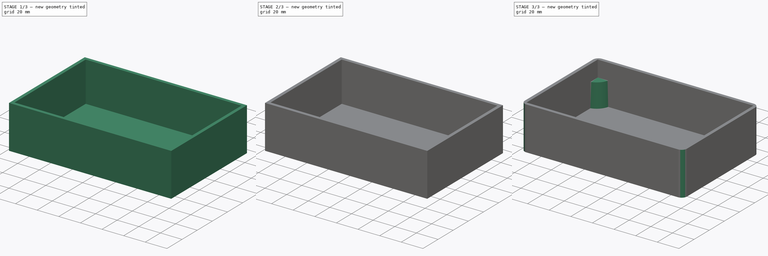
[diagram: build sequence overview — one tinted view per stage of 3, left to right]
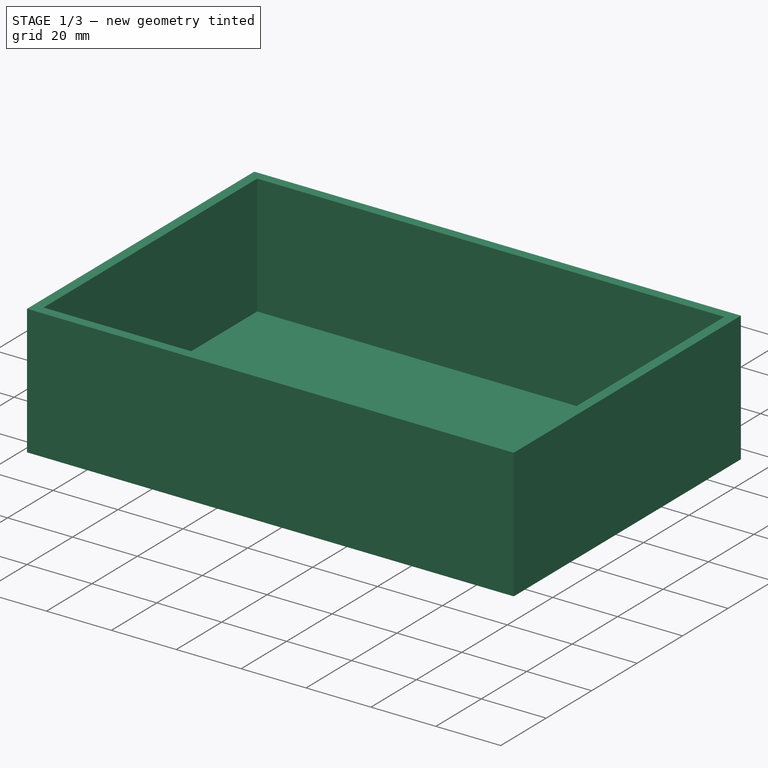
[diagram: stage 1 of 3 — iso view after this stage's code; geometry added in this stage tinted green]
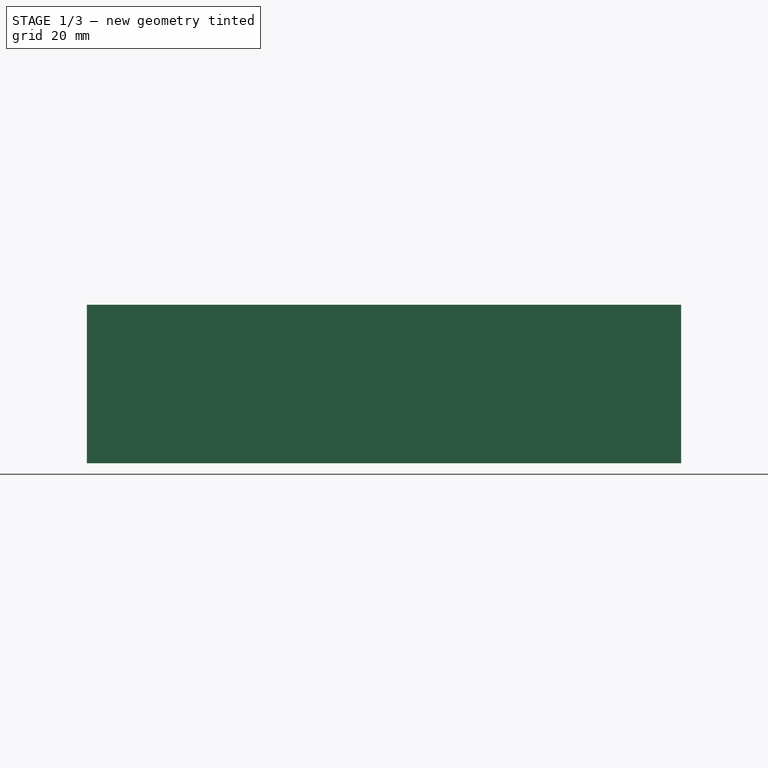
[diagram: stage 1 of 3 — front view after this stage's code; geometry added in this stage tinted green]
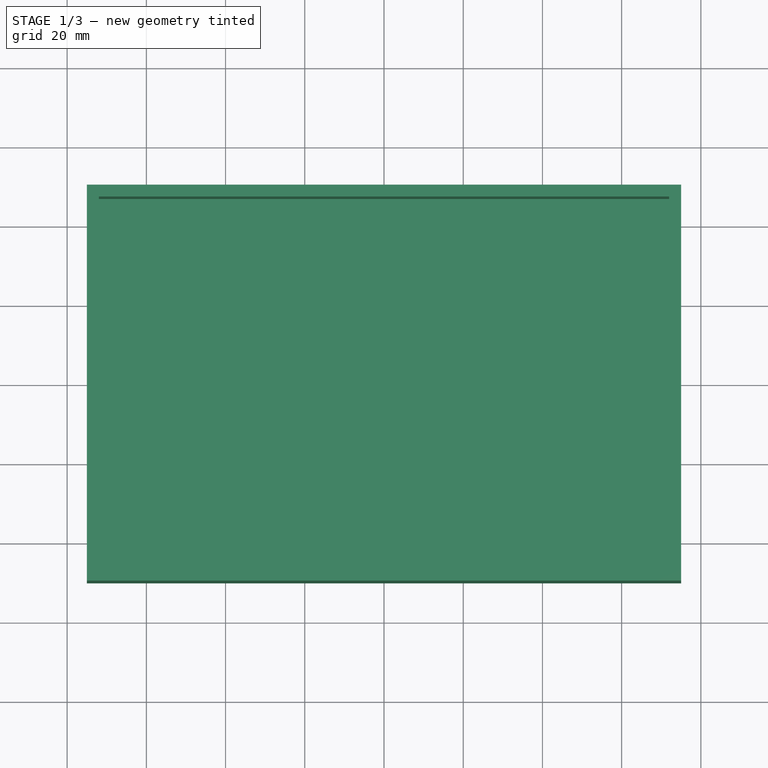
[diagram: stage 1 of 3 — top view after this stage's code; geometry added in this stage tinted green]
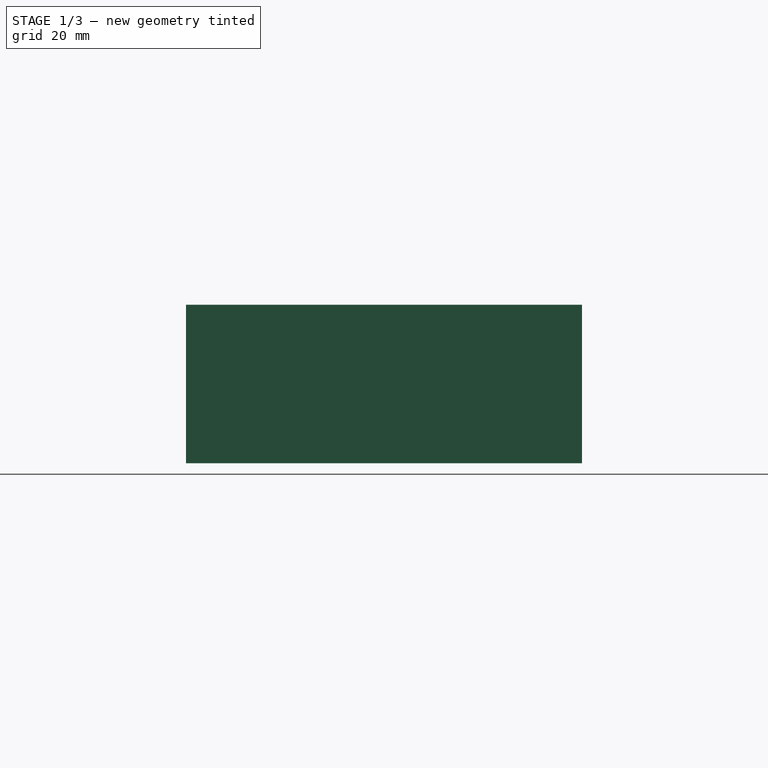
[diagram: stage 1 of 3 — right view after this stage's code; geometry added in this stage tinted green]
FCSTD DOCUMENT  (FreeCAD 1.0R39319 (Git))
Label: KICAD BOX
License: All rights reserved
LicenseURL: https://en.wikipedia.org/wiki/All_rights_reserved
objects: Sketcher::SketchObject×3, PartDesign::Pad×2, PartDesign::Thickness×1, PartDesign::Mirrored×1, PartDesign::Fillet×1, PartDesign::Body×1
note: 21 computed .brp shape members not serialized (recipe doc carries the construction recipe); baked Part::Feature solids carry a one-line shape summary decoded from their .brp

FEATURE [Sketcher::SketchObject] Sketch
  ArcFitTolerance = 1e-06
  AttachmentSupport = -> [XY_Plane]
  FullyConstrained = true
  MakeInternals = false
  MapMode = 5
  sketch-geometry (4):
    g0: LineSegment StartX=-75 StartY=50 StartZ=0 EndX=-75 EndY=-50 EndZ=0
    g1: LineSegment StartX=-75 StartY=-50 StartZ=0 EndX=75 EndY=-50 EndZ=0
    g2: LineSegment StartX=75 StartY=-50 StartZ=0 EndX=75 EndY=50 EndZ=0
    g3: LineSegment StartX=75 StartY=50 StartZ=0 EndX=-75 EndY=50 EndZ=0
  constraints (11):
    c: Coincident(g0,g1)
    c: Coincident(g1,g2)
    c: Coincident(g2,g3)
    c: Coincident(g3,g0)
    c: Vertical(g0)
    c: Vertical(g2)
    c: Horizontal(g1)
    c: Horizontal(g3)
    c: Distance(g0,g2) = 150
    c: Distance(g1,g3) = 100
    c: Symmetric(g0,g1,g-1)
FEATURE [PartDesign::Pad] Pad
  Direction = (0,0,1)
  Length = 40
  Length2 = 10
  Profile = -> Sketch
  ReferenceAxis = -> Sketch [N_Axis]
  Refine = true
  Reversed = true
  Suppressed = false
  Type = 0
FEATURE [PartDesign::Thickness] Thickness
  Base = -> Pad [Face5]
  BaseFeature = -> Pad
  Intersection = false
  Join = 1
  Mode = 0
  Refine = true
  Reversed = true
  SupportTransform = false
  Suppressed = false
  Value = 3
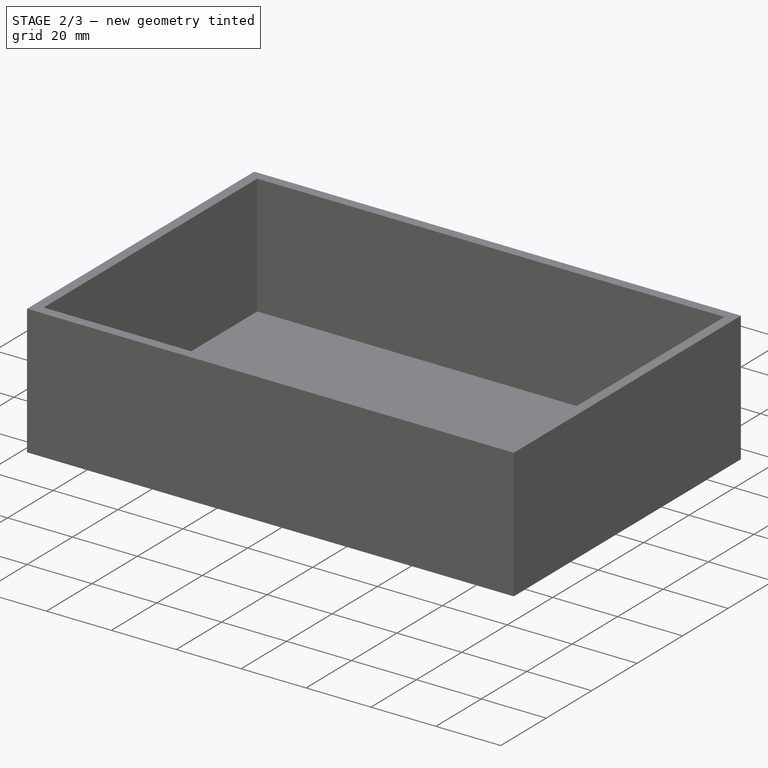
[diagram: stage 2 of 3 — iso view after this stage's code; geometry added in this stage tinted green]
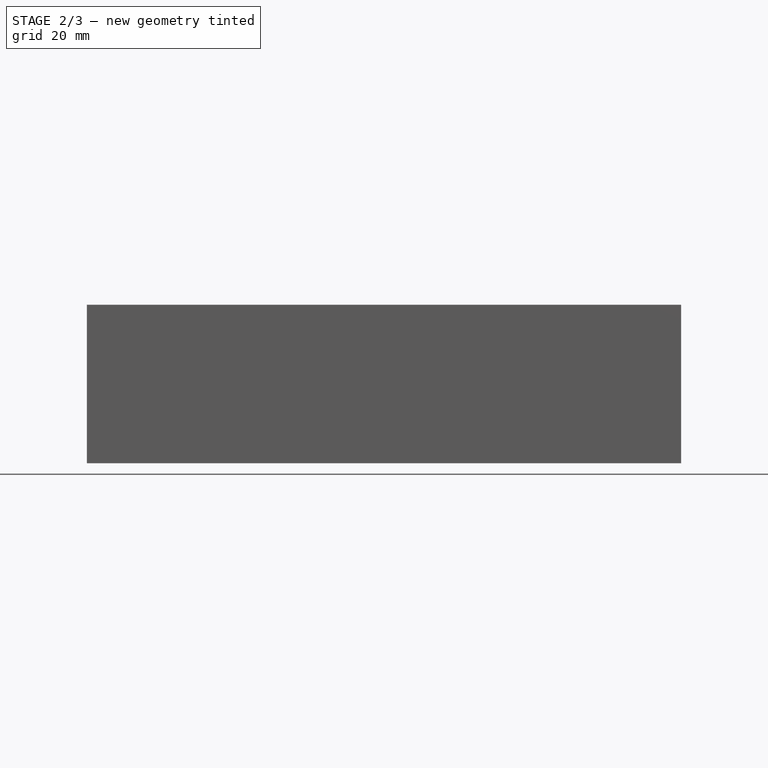
[diagram: stage 2 of 3 — front view after this stage's code; geometry added in this stage tinted green]
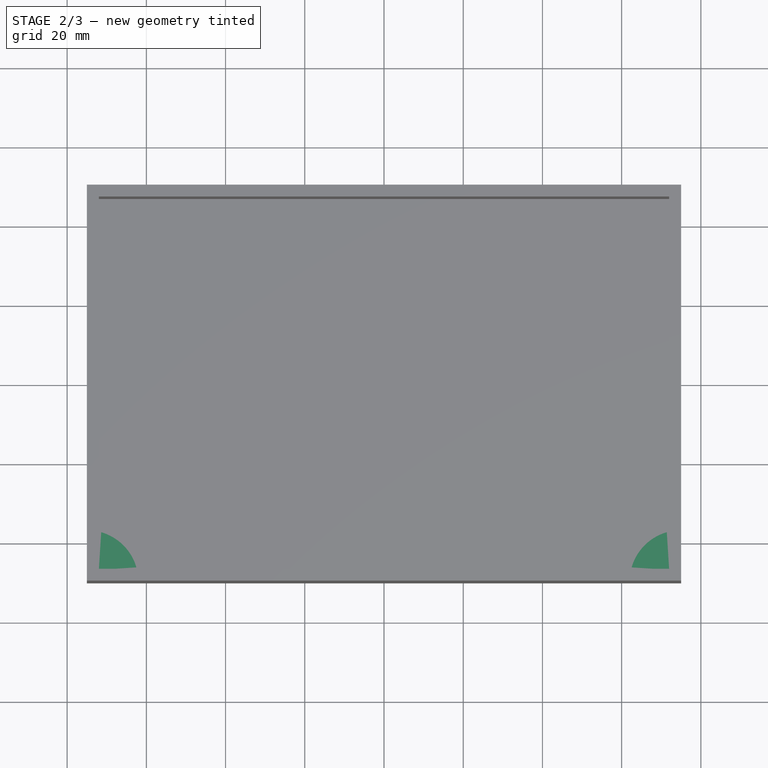
[diagram: stage 2 of 3 — top view after this stage's code; geometry added in this stage tinted green]
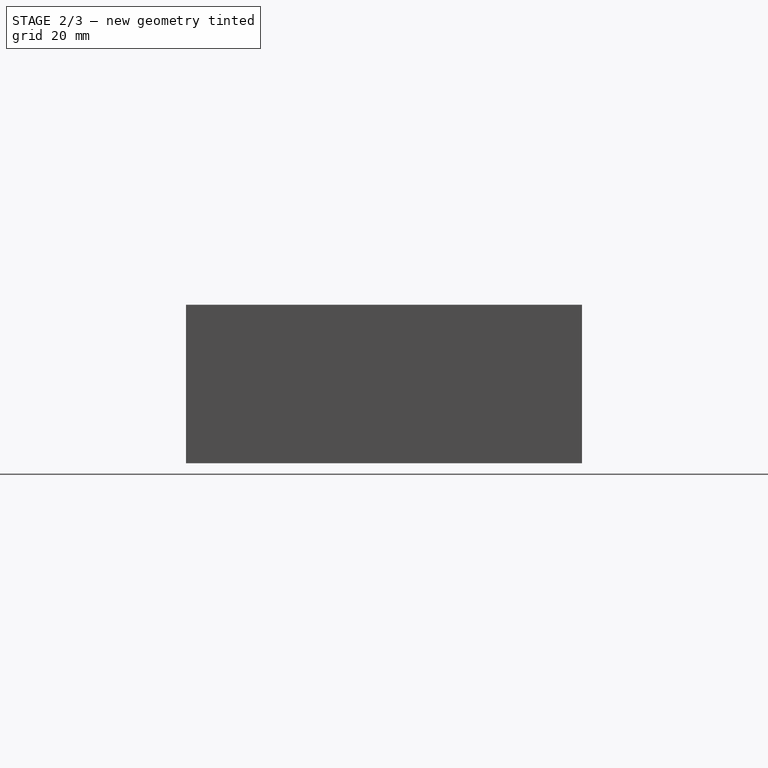
[diagram: stage 2 of 3 — right view after this stage's code; geometry added in this stage tinted green]
FEATURE [Sketcher::SketchObject] Sketch001
  ArcFitTolerance = 1e-06
  AttachmentSupport = -> [Thickness]
  ExternalGeometry = -> [Thickness]
  FullyConstrained = true
  MakeInternals = false
  MapMode = 5
  Placement = pos=(0,0,-40) rot=(1,0,0;3.14159rad)
  sketch-geometry (6):
    g0: LineSegment StartX=-75 StartY=50 StartZ=0 EndX=-62 EndY=50 EndZ=0
    g1: LineSegment StartX=-75 StartY=50 StartZ=0 EndX=-75 EndY=37 EndZ=0
    g2: LineSegment StartX=75 StartY=50 StartZ=0 EndX=62 EndY=50 EndZ=0
    g3: LineSegment StartX=75 StartY=50 StartZ=0 EndX=75 EndY=37 EndZ=0
    g4: ArcOfCircle CenterX=-75 CenterY=50 CenterZ=0 NormalX=0 NormalY=0 NormalZ=1 AngleXU=0 Radius=13 StartAngle=4.71239 EndAngle=6.28319
    g5: ArcOfCircle CenterX=75 CenterY=50 CenterZ=0 NormalX=0 NormalY=0 NormalZ=1 AngleXU=0 Radius=13 StartAngle=3.14159 EndAngle=4.71239
  constraints (18):
    c: Distance(g0) = 13
    c: Coincident(g0,g-4)
    c: PointOnObject(g0,g-3)
    c: Distance(g1) = 13
    c: Coincident(g1,g0)
    c: PointOnObject(g1,g-4)
    c: Distance(g2) = 13
    c: Coincident(g2,g-3)
    c: PointOnObject(g2,g-3)
    c: Distance(g3) = 13
    c: Coincident(g3,g2)
    c: Vertical(g3)
    c: Coincident(g4,g0)
    c: Coincident(g4,g0)
    c: PointOnObject(g4,g-4)
    c: Coincident(g5,g2)
    c: PointOnObject(g5,g-3)
    c: Coincident(g5,g3)
FEATURE [PartDesign::Pad] Pad001
  BaseFeature = -> Thickness
  Direction = (0,0,-1)
  Length = 25
  Length2 = 10
  Profile = -> Sketch001
  ReferenceAxis = -> Sketch001 [N_Axis]
  Refine = true
  Reversed = true
  Suppressed = false
  Type = 0
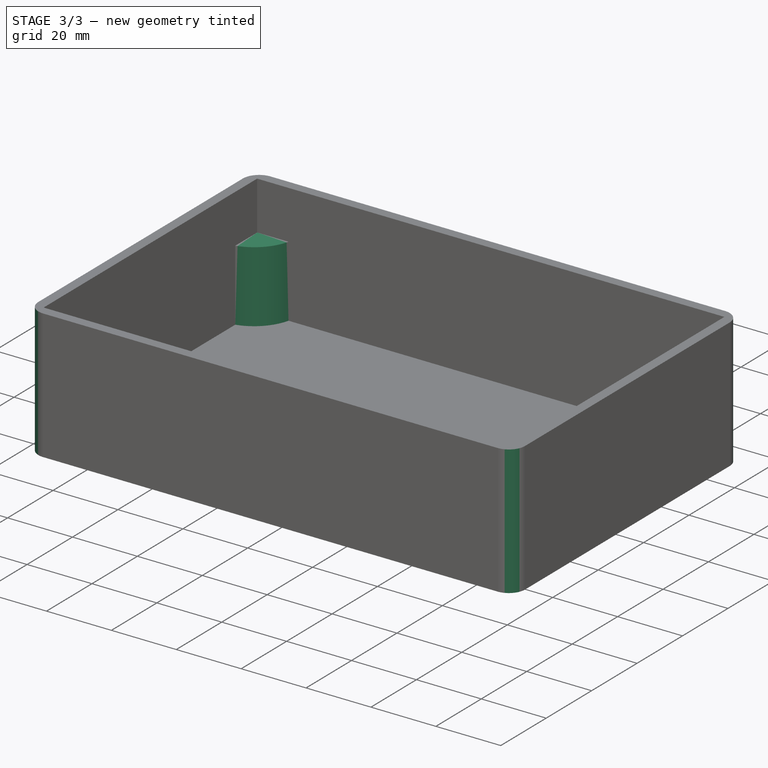
[diagram: stage 3 of 3 — iso view after this stage's code; geometry added in this stage tinted green]
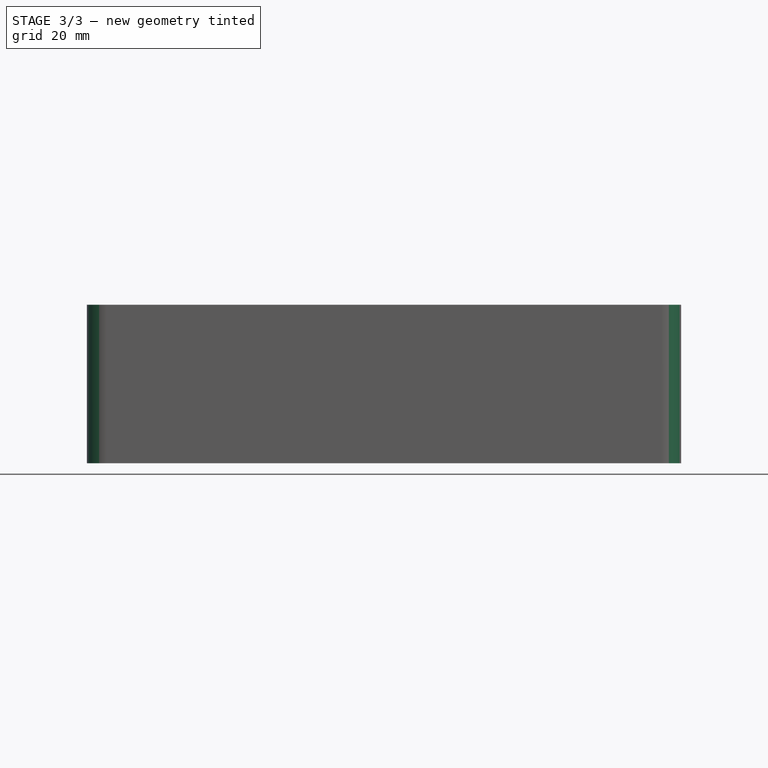
[diagram: stage 3 of 3 — front view after this stage's code; geometry added in this stage tinted green]
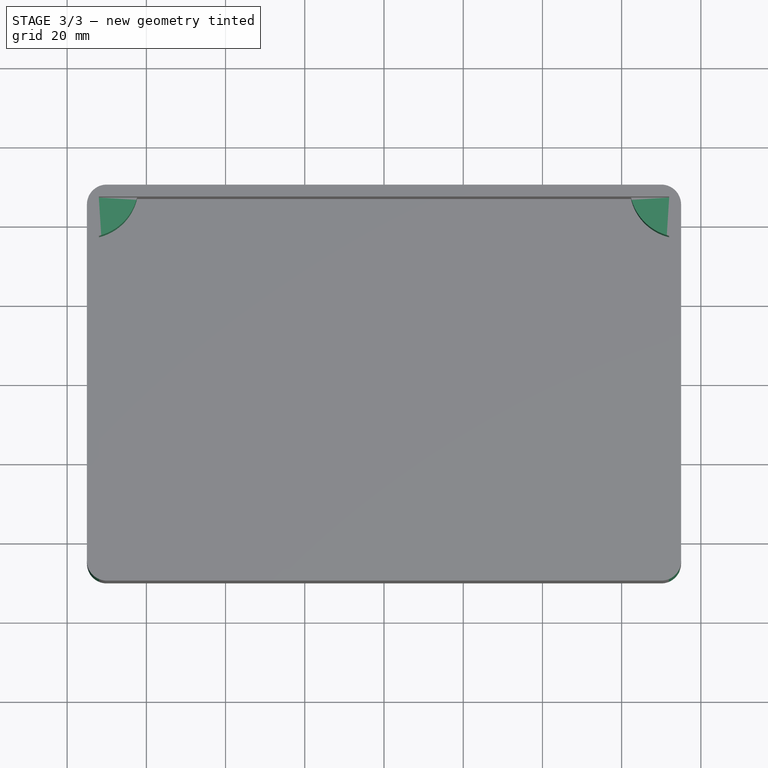
[diagram: stage 3 of 3 — top view after this stage's code; geometry added in this stage tinted green]
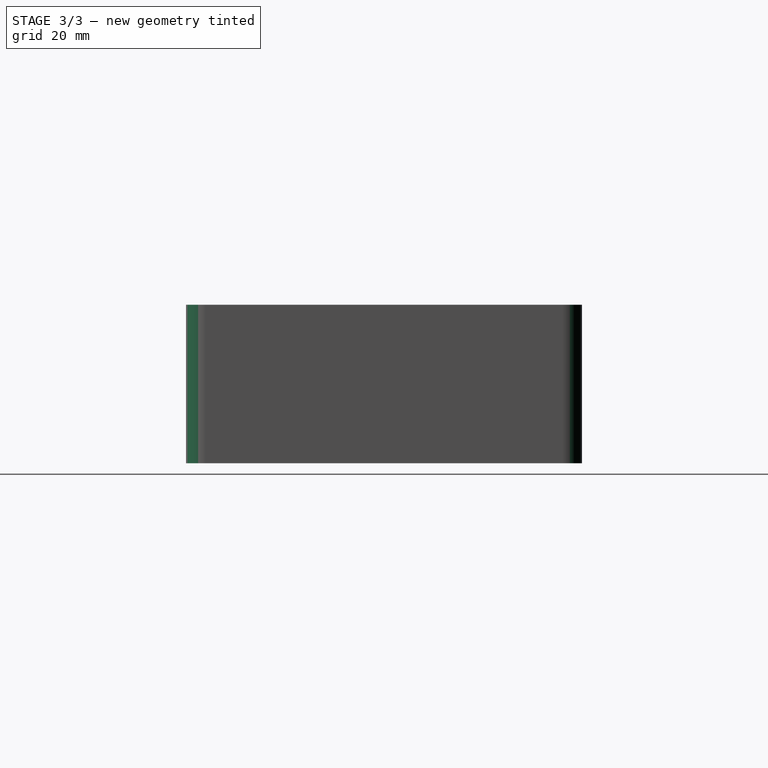
[diagram: stage 3 of 3 — right view after this stage's code; geometry added in this stage tinted green]
FEATURE [PartDesign::Mirrored] Mirrored
  BaseFeature = -> Pad001
  MirrorPlane = -> Sketch001 [H_Axis]
  Originals = -> [Pad001]
  Refine = true
  Suppressed = false
  TransformMode = 0
FEATURE [Sketcher::SketchObject] Sketch002
  ArcFitTolerance = 1e-06
  AttachmentSupport = -> [Mirrored]
  ExternalGeometry = -> [Mirrored]
  FullyConstrained = true
  MakeInternals = false
  MapMode = 5
  Placement = pos=(0,0,-15) rot=(0,0,1;0rad)
  sketch-geometry (1):
    g0: Circle CenterX=-68.57 CenterY=43.09 CenterZ=0 NormalX=0 NormalY=0 NormalZ=1 AngleXU=0 Radius=2
  constraints (3):
    c: Diameter(g0) = 4
    c: DistanceX(g0) = -68.57
    c: DistanceY(g0) = 43.09
FEATURE [PartDesign::Fillet] Fillet
  Base = -> Mirrored [Edge11,Edge47,Edge9,Edge44]
  BaseFeature = -> Mirrored
  Radius = 5
  Refine = true
  SupportTransform = false
  Suppressed = false
  UseAllEdges = false
FEATURE [PartDesign::Body] Body
  AllowCompound = false
  Group = -> [Sketch,Pad,Thickness,Sketch001,Pad001,Mirrored,Sketch002,Fillet]
  Origin = -> Origin
  Tip = -> Fillet
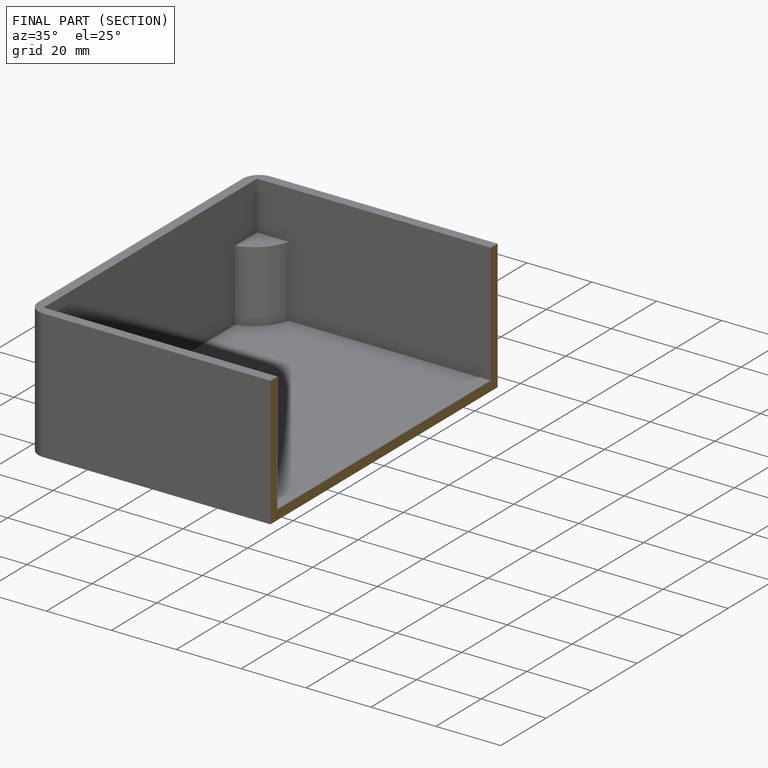
[diagram: finished part — half-section view (interior)]
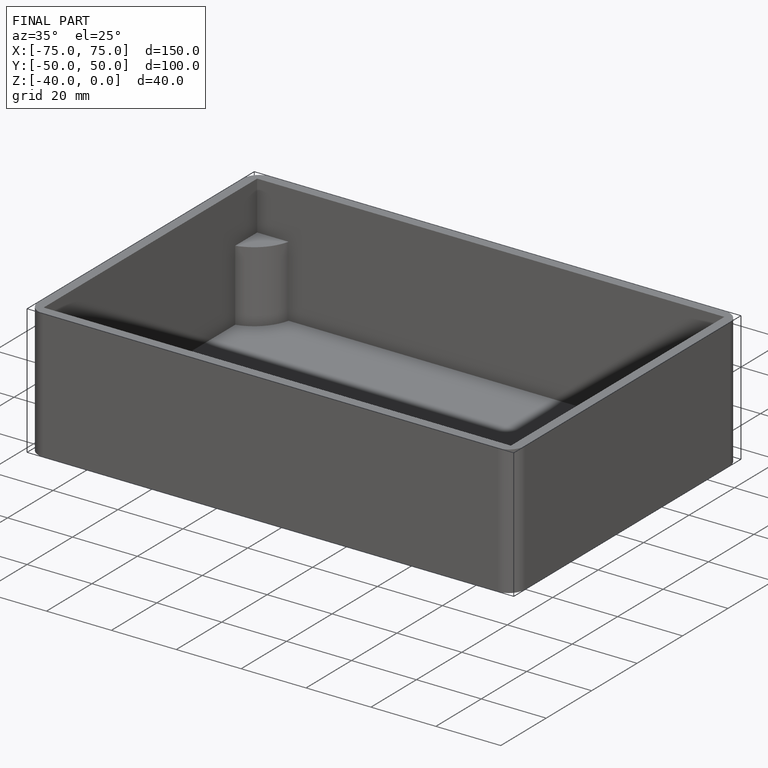
[diagram: finished part — iso view with bounding-box wireframe]
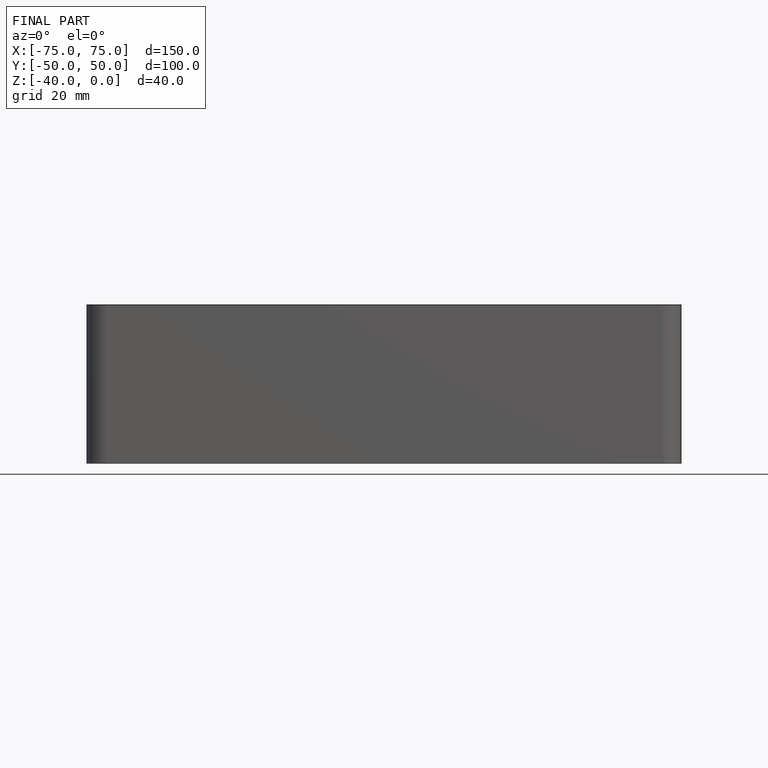
[diagram: finished part — front view with bounding-box wireframe]
